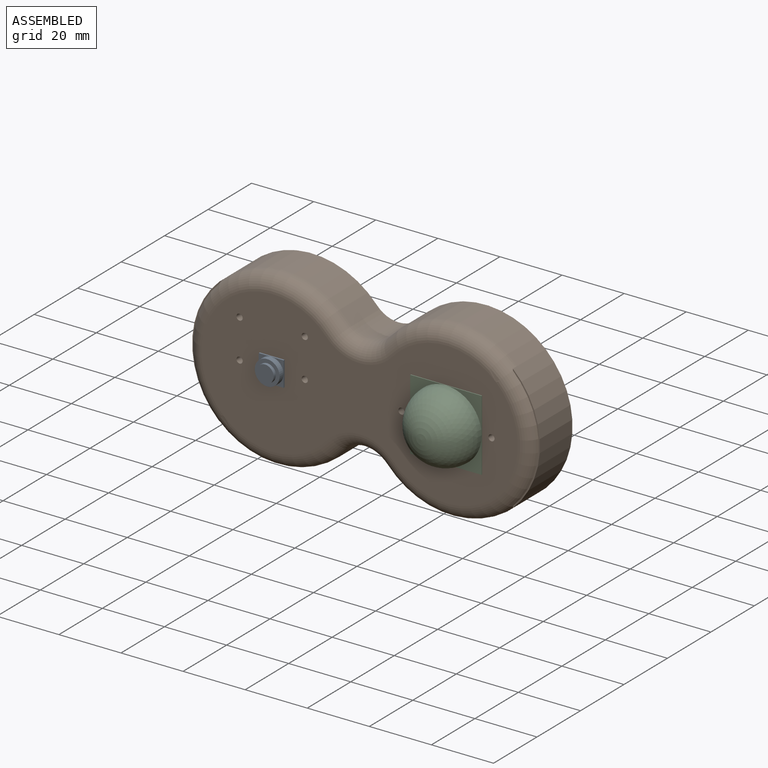
[diagram: assembled view]
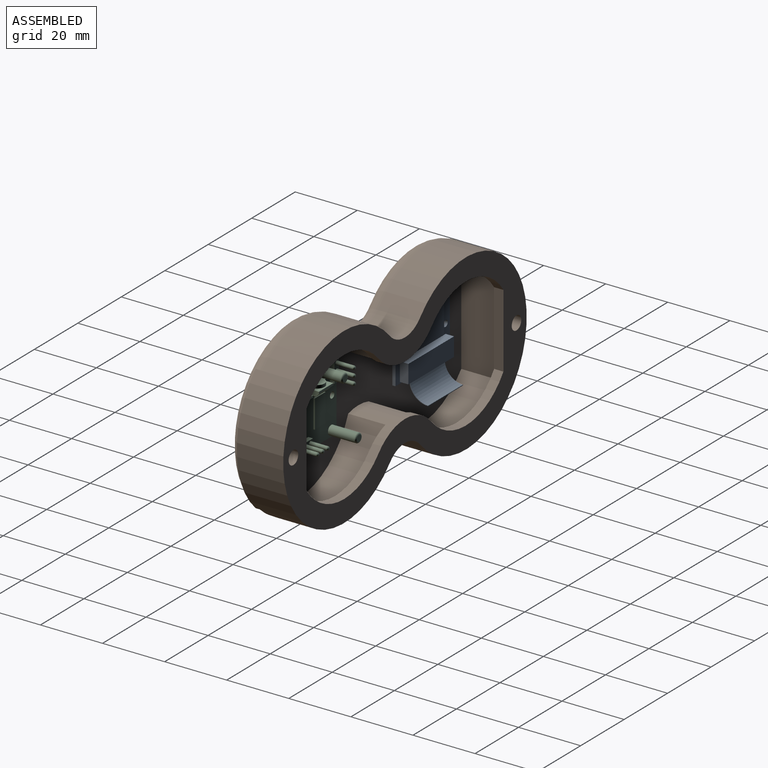
[diagram: assembled view, second angle]
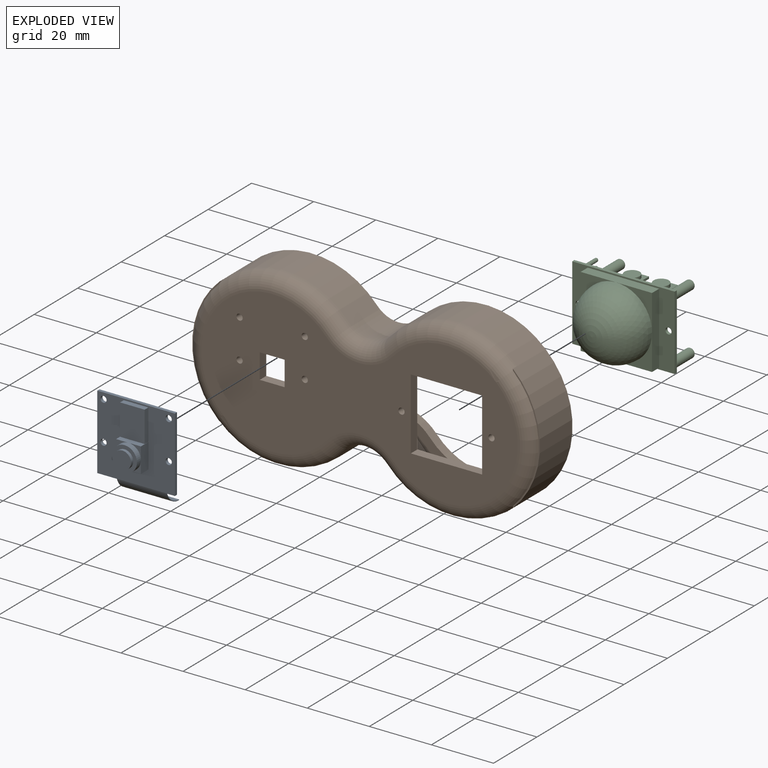
[diagram: exploded view]
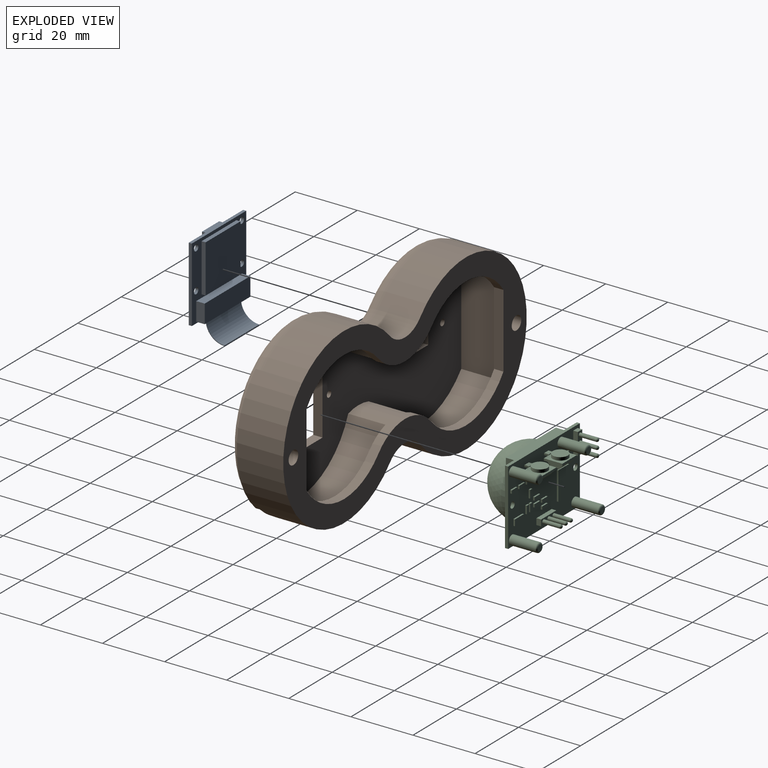
[diagram: exploded view, second angle]
ASSEMBLY  parts=3 mates=2
PART A: 41 faces, bbox 25x29.6x14.7 mm
  f0: plane 25x24mm, normal (0,0,1), area 444.3mm2, adj f5,f16,f17,f18,f19,f20,f21,f22
  f1: plane 4x4mm, normal (0,0,1), area 3.4mm2, adj f20,f21,f34
  f2: plane 4x4mm, normal (0,0,1), area 3.4mm2, adj f21,f22,f34
  f3: plane 4x4mm, normal (0,0,1), area 3.4mm2, adj f5,f22,f34
  f4: plane 25x24mm, normal (0,0,-1), area 213.4mm2, adj f11,f13,f14,f15,f16,f17,f18,f19
  f5: plane 8x3.5mm, normal (0,1,0), area 14.6mm2, adj f0,f3,f20,f22,f23,f24,f25,f26
  f6: cylinder r=5.9mm len=16mm, axis (-1,0,0), area 148.3mm2, adj f8,f9,f10,f15
  f7: cylinder r=6.1mm len=16mm, axis (-1,0,0), area 153.3mm2, adj f8,f9,f10,f15
  f8: plane 16x0.2mm, normal (0,0,-1), area 3.2mm2, adj f6,f7,f9,f10
  f9: plane 6.1x6.1mm, normal (1,0,0), area 1.9mm2, adj f6,f7,f8,f15
  f10: plane 6.1x6.1mm, normal (-1,0,0), area 1.9mm2, adj f6,f7,f8,f15
  f11: plane 6x2.75mm, normal (1,0,0), area 16.5mm2, adj f4,f12,f14,f15
  f12: plane 21x6mm, normal (0,0,-1), area 126mm2, adj f11,f13,f14,f15
  f13: plane 6x2.75mm, normal (-1,0,0), area 16.5mm2, adj f4,f12,f14,f15
  f14: plane 21x2.75mm, normal (0,1,0), area 57.8mm2, adj f4,f11,f12,f13
  f15: plane 21x2.75mm, normal (0,-1,0), area 54.6mm2, adj f4,f6,f7,f9,f10,f11,f12,f13
  f16: plane 24x1mm, normal (-1,0,0), area 24mm2, adj f0,f4,f17,f19
  f17: plane 25x1mm, normal (0,-1,0), area 25mm2, adj f0,f4,f16,f18
  f18: plane 24x1mm, normal (1,0,0), area 24mm2, adj f0,f4,f17,f19
  f19: plane 25x1mm, normal (0,1,0), area 25mm2, adj f0,f4,f16,f18
  f20: plane 8x3.5mm, normal (-1,0,0), area 28mm2, adj f0,f1,f5,f21,f23
  f21: plane 8x3.5mm, normal (0,-1,0), area 28mm2, adj f0,f1,f2,f20,f22
  f22: plane 8x3.5mm, normal (1,0,0), area 28mm2, adj f0,f2,f3,f5,f21
  f23: plane 4x4mm, normal (0,0,1), area 3.4mm2, adj f5,f20,f34
  f24: plane 10x7.91mm, normal (0,0,1), area 79.1mm2, adj f5,f25,f26,f27
  f25: plane 10x1.7mm, normal (1,0,0), area 17mm2, adj f0,f5,f24,f27
  f26: plane 10x1.7mm, normal (-1,0,0), area 17mm2, adj f0,f5,f24,f27
  f27: plane 7.91x1.7mm, normal (0,1,0), area 13.4mm2, adj f0,f24,f25,f26
  f28: plane 16x1.3mm, normal (0,-1,0), area 20.8mm2, adj f4,f29,f31,f32
  f29: plane 15.5x1.3mm, normal (-1,0,0), area 20.1mm2, adj f4,f28,f30,f32
  f30: plane 16x1.3mm, normal (0,1,0), area 20.8mm2, adj f4,f29,f31,f32
  f31: plane 15.5x1.3mm, normal (1,0,0), area 20.1mm2, adj f4,f28,f30,f32
  f32: plane 16x15.5mm, normal (0,0,-1), area 248mm2, adj f28,f29,f30,f31
  f33: plane 8x8mm, normal (0,0,1), area 25.6mm2, adj f34,f35
  f34: cylinder r=4mm len=8mm, axis (0,0,1), area 45.2mm2, adj f1,f2,f3,f23,f33
  f35: cylinder r=2.8mm len=5.6mm, axis (0,0,-1), area 17.6mm2, adj f33,f36
  f36: plane 5.6x5.6mm, normal (0,0,1), area 24.6mm2, adj f35
  f37: cylinder r=1mm len=2mm, axis (0,0,1), area 6.3mm2, adj f0,f4
  f38: cylinder r=1mm len=2mm, axis (0,0,1), area 6.3mm2, adj f0,f4
  f39: cylinder r=1mm len=2mm, axis (0,0,1), area 6.3mm2, adj f0,f4
  f40: cylinder r=1mm len=2mm, axis (0,0,1), area 6.3mm2, adj f0,f4
PART B: 55 faces, bbox 116.6x18x60.6 mm
  f0: plane 94.61x50mm, normal (0,1,0), area 3187.9mm2, adj f1,f2,f3,f4,f11,f12,f13,f14
  f1: cylinder r=25mm len=42.61mm, axis (0,1,0), area 624.9mm2, adj f0,f26,f34,f46
  f2: cylinder r=25mm len=42.61mm, axis (0,1,0), area 624.9mm2, adj f0,f25,f33,f42
  f3: cylinder r=25mm len=42.61mm, axis (0,1,0), area 624.9mm2, adj f0,f26,f33,f46
  f4: cylinder r=25mm len=42.61mm, axis (0,1,0), area 624.9mm2, adj f0,f25,f34,f42
  f5: plane 112x56mm, normal (0,1,0), area 2053.2mm2, adj f7,f8,f9,f10,f27,f28,f29,f30
  f6: plane 102x46mm, normal (0,-1,0), area 2981.4mm2, adj f11,f12,f13,f14,f15,f16,f17,f18
  f7: cylinder r=28mm len=56mm, axis (0,1,0), area 1852mm2, adj f5,f8,f10,f35,f43,f44,f45
  f8: cylinder r=9.32mm len=13.98mm, axis (0,1,0), area 205.6mm2, adj f5,f7,f9,f36
  f9: cylinder r=28mm len=56mm, axis (0,1,0), area 1852mm2, adj f5,f8,f10,f38,f39,f40,f41
  f10: cylinder r=9.32mm len=13.98mm, axis (0,1,0), area 205.6mm2, adj f5,f7,f9,f37
  f11: plane 8x3mm, normal (1,0,0), area 24mm2, adj f0,f6,f12,f14
  f12: plane 8x3mm, normal (0,0,1), area 24mm2, adj f0,f6,f11,f13
  f13: plane 8x3mm, normal (-1,0,0), area 24mm2, adj f0,f6,f12,f14
  f14: plane 8x3mm, normal (0,0,-1), area 24mm2, adj f0,f6,f11,f13
  f15: plane 23x3mm, normal (1,0,0), area 69mm2, adj f0,f6,f16,f18
  f16: plane 23x3mm, normal (0,0,1), area 69mm2, adj f0,f6,f15,f17
  f17: plane 23x3mm, normal (-1,0,0), area 69mm2, adj f0,f6,f16,f18
  f18: plane 23x3mm, normal (0,0,-1), area 69mm2, adj f0,f6,f15,f17
  f19: cylinder r=1mm len=3mm, axis (0,-1,0), area 18.8mm2, adj f0,f6
  f20: cylinder r=1mm len=3mm, axis (0,-1,0), area 18.8mm2, adj f0,f6
  f21: cylinder r=1mm len=3mm, axis (0,-1,0), area 18.8mm2, adj f0,f6
  f22: cylinder r=1mm len=3mm, axis (0,-1,0), area 18.8mm2, adj f0,f6
  f23: cylinder r=1mm len=3mm, axis (0,-1,0), area 18.8mm2, adj f0,f6
  f24: cylinder r=1mm len=3mm, axis (0,-1,0), area 18.8mm2, adj f0,f6
  f25: plane 50x42.61mm, normal (0,-1,0), area 427.8mm2, adj f2,f4,f27,f28,f29,f33,f34,f42
  f26: plane 50x42.61mm, normal (0,-1,0), area 427.8mm2, adj f1,f3,f30,f31,f32,f33,f34,f46
  f27: cylinder r=21mm len=33.06mm, axis (0,1,0), area 114.5mm2, adj f5,f25,f28,f33
  f28: plane 23.79x3mm, normal (1,0,0), area 71.4mm2, adj f5,f25,f27,f29
  f29: cylinder r=21mm len=33.06mm, axis (0,1,0), area 114.5mm2, adj f5,f25,f28,f34
  f30: cylinder r=21mm len=33.06mm, axis (0,1,0), area 114.5mm2, adj f5,f26,f31,f34
  f31: plane 23.79x3mm, normal (-1,0,0), area 71.4mm2, adj f5,f26,f30,f32
  f32: cylinder r=21mm len=33.06mm, axis (0,1,0), area 114.5mm2, adj f5,f26,f31,f33
  f33: cylinder r=16.32mm len=24.49mm, axis (0,1,0), area 197.3mm2, adj f0,f2,f3,f5,f25,f26,f27,f32
  f34: cylinder r=16.32mm len=24.49mm, axis (0,1,0), area 197.3mm2, adj f0,f1,f4,f5,f25,f26,f29,f30
  f35: torus R=23mm, axis (0,-1,0), area 902.7mm2, adj f6,f7,f36,f37,f43,f44,f45
  f36: torus R=14.32mm, axis (0,-1,0), area 148.4mm2, adj f6,f8,f35,f38
  f37: torus R=14.32mm, axis (0,-1,0), area 148.4mm2, adj f6,f10,f35,f38
  f38: torus R=23mm, axis (0,-1,0), area 902.7mm2, adj f6,f9,f36,f37,f39,f40,f41
  f39: plane 2.01x0.59mm, normal (1,0,0), area 0.4mm2, adj f9,f38,f41
  f40: plane 2x0.59mm, normal (1,0,0), area 0.4mm2, adj f9,f38,f41
  f41: plane 40.56x8.69mm, normal (0,-1,0), area 18.6mm2, adj f9,f38,f39,f40
  f42: plane 31.76x12mm, normal (1,0,0), area 381.2mm2, adj f0,f2,f4,f25
  f43: plane 2.01x0.59mm, normal (-1,0,0), area 0.4mm2, adj f7,f35,f45
  f44: plane 2x0.59mm, normal (-1,0,0), area 0.4mm2, adj f7,f35,f45
  f45: plane 40.56x8.69mm, normal (0,-1,0), area 18.6mm2, adj f7,f35,f43,f44
  f46: plane 31.76x12mm, normal (-1,0,0), area 381.2mm2, adj f0,f1,f3,f26
  f47: cylinder r=2.2mm len=9.4mm, axis (0,1,0), area 129.9mm2, adj f5,f48
  f48: cone r=0mm half-angle=59deg, axis (0,1,0), area 3.1mm2, adj f47,f50
  f49: cone r=0mm half-angle=59deg, axis (0,1,0), area 14.7mm2, adj f50
  f50: cylinder r=2mm len=4.88mm, axis (0,1,0), area 61.3mm2, adj f48,f49
  f51: cylinder r=2.2mm len=9.4mm, axis (0,1,0), area 129.9mm2, adj f5,f52
  f52: cone r=0mm half-angle=59deg, axis (0,1,0), area 3.1mm2, adj f51,f54
  f53: cone r=0mm half-angle=59deg, axis (0,1,0), area 14.7mm2, adj f54
  f54: cylinder r=2mm len=4.88mm, axis (0,1,0), area 61.3mm2, adj f52,f53
PART C: 187 faces, bbox 33x24x24.8 mm
  f0: plane 33x24mm, normal (0,0,-1), area 634.4mm2, adj f13,f14,f15,f16,f22,f23,f24,f26
  f1: plane 6.63x6mm, normal (0,1,0), area 20.8mm2, adj f5,f65,f66,f67,f68,f95
  f2: plane 6.63x6mm, normal (0,1,0), area 20.8mm2, adj f48,f49,f50,f51,f52,f93
  f3: plane 6.63x6mm, normal (0,-1,0), area 12.3mm2, adj f49,f50,f51,f52,f84,f85,f86,f87
  f4: plane 6.63x6mm, normal (0,-1,0), area 12.1mm2, adj f65,f66,f67,f68,f79,f80,f81,f82
  f5: plane 2x0.23mm, normal (0,0,-1), area 0.5mm2, adj f1,f40,f41,f42
  f6: plane 7x2.01mm, normal (0,0,-1), area 10.7mm2, adj f36,f37,f38,f39,f59,f61,f63
  f7: plane 7x2mm, normal (0,0,-1), area 10.6mm2, adj f32,f33,f34,f35,f53,f55,f57
  f8: plane 11.5x11.5mm, normal (0,0,1), area 28.4mm2, adj f17,f18,f21
  f9: plane 11.5x11.5mm, normal (0,0,1), area 28.4mm2, adj f18,f19,f21
  f10: plane 11.5x11.5mm, normal (0,0,1), area 28.4mm2, adj f19,f20,f21
  f11: plane 11.5x11.5mm, normal (0,0,1), area 28.4mm2, adj f17,f20,f21
  f12: plane 33x24mm, normal (0,0,1), area 256.7mm2, adj f13,f14,f15,f16,f17,f18,f19,f20
  f13: plane 24x1mm, normal (1,0,0), area 24mm2, adj f0,f12,f14,f16
  f14: plane 33x1mm, normal (0,1,0), area 33mm2, adj f0,f12,f13,f15
  f15: plane 24x1mm, normal (-1,0,0), area 24mm2, adj f0,f12,f14,f16
  f16: plane 33x1mm, normal (0,-1,0), area 33mm2, adj f0,f12,f13,f15
  f17: plane 23x3.25mm, normal (1,0,0), area 74.8mm2, adj f8,f11,f12,f18,f20
  f18: plane 23x3.25mm, normal (0,1,0), area 74.8mm2, adj f8,f9,f12,f17,f19
  f19: plane 23x3.25mm, normal (-1,0,0), area 74.8mm2, adj f9,f10,f12,f18,f20
  f20: plane 23x3.25mm, normal (0,-1,0), area 74.8mm2, adj f10,f11,f12,f17,f19
  f21: sphere r=11.5mm, area 831mm2, adj f8,f9,f10,f11
  f22: cylinder r=1mm len=2mm, axis (0,0,1), area 6.3mm2, adj f0,f12
  f23: cylinder r=1mm len=2mm, axis (0,0,1), area 6.3mm2, adj f0,f12
  f24: cylinder r=1.5mm len=8.5mm, axis (0,0,1), area 80.1mm2, adj f0,f78
  f25: plane 2x2mm, normal (0,0,-1), area 3.1mm2, adj f78
  f26: cylinder r=1.5mm len=8.5mm, axis (0,0,1), area 80.1mm2, adj f0,f77
  f27: plane 2x2mm, normal (0,0,-1), area 3.1mm2, adj f77
  f28: cylinder r=1.5mm len=8.5mm, axis (0,0,1), area 80.1mm2, adj f0,f75
  f29: plane 2x2mm, normal (0,0,-1), area 3.1mm2, adj f75
  f30: cylinder r=1.5mm len=8.5mm, axis (0,0,1), area 80.1mm2, adj f0,f76
  f31: plane 2x2mm, normal (0,0,-1), area 3.1mm2, adj f76
  f32: plane 2x1.5mm, normal (-1,0,0), area 3mm2, adj f0,f7,f33,f35
  f33: plane 7x1.5mm, normal (0,1,0), area 10.5mm2, adj f0,f7,f32,f34
  f34: plane 2x1.5mm, normal (1,0,0), area 3mm2, adj f0,f7,f33,f35
  f35: plane 7x1.5mm, normal (0,-1,0), area 10.5mm2, adj f0,f7,f32,f34
  f36: plane 7x1.5mm, normal (-1,0,0), area 10.5mm2, adj f0,f6,f37,f39
  f37: plane 2.01x1.5mm, normal (0,1,0), area 3mm2, adj f0,f6,f36,f38
  f38: plane 7x1.5mm, normal (1,0,0), area 10.5mm2, adj f0,f6,f37,f39
  f39: plane 2.01x1.5mm, normal (0,-1,0), area 3mm2, adj f0,f6,f36,f38
  f40: plane 1.5x0.59mm, normal (-1,0,0), area 0.9mm2, adj f0,f5,f41,f43,f68
  f41: plane 2x1.5mm, normal (0,1,0), area 3mm2, adj f0,f5,f40,f42
  f42: plane 1.5x0.59mm, normal (1,0,0), area 0.9mm2, adj f0,f5,f41,f43,f68
  f43: plane 2x1.5mm, normal (0,-1,0), area 3mm2, adj f0,f40,f42,f68
  f44: plane 1.5x0.59mm, normal (-1,0,0), area 0.9mm2, adj f0,f45,f47,f48,f49
  f45: plane 2x1.5mm, normal (0,1,0), area 3mm2, adj f0,f44,f46,f48
  f46: plane 1.5x0.59mm, normal (1,0,0), area 0.9mm2, adj f0,f45,f47,f48,f49
  f47: plane 2x1.5mm, normal (0,-1,0), area 3mm2, adj f0,f44,f46,f49
  f48: plane 2x0.23mm, normal (0,0,-1), area 0.5mm2, adj f2,f44,f45,f46
  f49: plane 6.63x0.7mm, normal (0,0,1), area 4mm2, adj f2,f3,f44,f46,f47,f50,f51
  f50: plane 6x0.7mm, normal (-1,0,0), area 4.2mm2, adj f2,f3,f49,f52
  f51: plane 6x0.7mm, normal (1,0,0), area 4.2mm2, adj f2,f3,f49,f52
  f52: plane 6.63x0.7mm, normal (0,0,-1), area 4.7mm2, adj f2,f3,f50,f51
  f53: cylinder r=0.6mm len=5.5mm, axis (0,0,1), area 20.7mm2, adj f7,f73
  f54: plane 0.2x0.2mm, normal (0,0,-1), area 0mm2, adj f73
  f55: cylinder r=0.6mm len=5.5mm, axis (0,0,1), area 20.7mm2, adj f7,f74
  f56: plane 0.2x0.2mm, normal (0,0,-1), area 0mm2, adj f74
  f57: cylinder r=0.6mm len=5.5mm, axis (0,0,1), area 20.7mm2, adj f7,f72
  f58: plane 0.2x0.2mm, normal (0,0,-1), area 0mm2, adj f72
  f59: cylinder r=0.6mm len=5.5mm, axis (0,0,1), area 20.7mm2, adj f6,f70
  f60: plane 0.2x0.2mm, normal (0,0,-1), area 0mm2, adj f70
  f61: cylinder r=0.6mm len=5.5mm, axis (0,0,1), area 20.7mm2, adj f6,f69
  f62: plane 0.2x0.2mm, normal (0,0,-1), area 0mm2, adj f69
  f63: cylinder r=0.6mm len=5.5mm, axis (0,0,1), area 20.7mm2, adj f6,f71
  f64: plane 0.2x0.2mm, normal (0,0,-1), area 0mm2, adj f71
  f65: plane 6x0.7mm, normal (-1,0,0), area 4.2mm2, adj f1,f4,f67,f68
  f66: plane 6x0.7mm, normal (1,0,0), area 4.2mm2, adj f1,f4,f67,f68
  f67: plane 6.63x0.7mm, normal (0,0,-1), area 4.7mm2, adj f1,f4,f65,f66
  f68: plane 6.63x0.7mm, normal (0,0,1), area 4mm2, adj f1,f4,f40,f42,f43,f65,f66
  f69: torus R=0.1mm, axis (0,0,-1), area 2.1mm2, adj f61,f62
  f70: torus R=0.1mm, axis (0,0,-1), area 2.1mm2, adj f59,f60
  f71: torus R=0.1mm, axis (0,0,1), area 2.1mm2, adj f63,f64
  f72: torus R=0.1mm, axis (0,0,1), area 2.1mm2, adj f57,f58
  f73: torus R=0.1mm, axis (0,0,-1), area 2.1mm2, adj f53,f54
  f74: torus R=0.1mm, axis (0,0,-1), area 2.1mm2, adj f55,f56
  f75: torus R=1mm, axis (0,0,-1), area 6.5mm2, adj f28,f29
  f76: torus R=1mm, axis (0,0,-1), area 6.5mm2, adj f30,f31
  f77: torus R=1mm, axis (0,0,-1), area 6.5mm2, adj f26,f27
  f78: torus R=1mm, axis (0,0,-1), area 6.5mm2, adj f24,f25
  f79: plane 4.72x1.5mm, normal (1,0,0), area 6.1mm2, adj f4,f80,f82,f83,f91,f92
  f80: plane 5.86x0.5mm, normal (0,0,1), area 2.9mm2, adj f4,f79,f81,f91
  f81: plane 4.72x1.5mm, normal (-1,0,0), area 6.1mm2, adj f4,f80,f82,f83,f91,f92
  f82: plane 5.86x0.5mm, normal (0,0,-1), area 2.9mm2, adj f4,f79,f81,f92
  f83: plane 5.86x2.72mm, normal (0,-1,0), area 15.9mm2, adj f79,f81,f91,f92
  f84: plane 4.72x1.5mm, normal (1,0,0), area 6.1mm2, adj f3,f85,f87,f88,f89,f90
  f85: plane 5.82x0.5mm, normal (0,0,1), area 2.9mm2, adj f3,f84,f86,f89
  f86: plane 4.72x1.5mm, normal (-1,0,0), area 6.1mm2, adj f3,f85,f87,f88,f89,f90
  f87: plane 5.82x0.5mm, normal (0,0,-1), area 2.9mm2, adj f3,f84,f86,f90
  f88: plane 5.82x2.72mm, normal (0,-1,0), area 15.8mm2, adj f84,f86,f89,f90
  f89: plane 5.82x1mm, normal (0,-0.71,0.71), area 8.2mm2, adj f84,f85,f86,f88
  f90: plane 5.82x1mm, normal (0,-0.71,-0.71), area 8.2mm2, adj f84,f86,f87,f88
  f91: plane 5.86x1mm, normal (0,-0.71,0.71), area 8.3mm2, adj f79,f80,f81,f83
  f92: plane 5.86x1mm, normal (0,-0.71,-0.71), area 8.3mm2, adj f79,f81,f82,f83
  f93: cylinder r=2.46mm len=4.91mm, axis (0,-1,0), area 15.4mm2, adj f2,f94
  f94: plane 4.91x4.91mm, normal (0,1,0), area 18.9mm2, adj f93
  f95: cylinder r=2.46mm len=4.91mm, axis (0,-1,0), area 15.4mm2, adj f1,f96
  f96: plane 4.91x4.91mm, normal (0,1,0), area 18.9mm2, adj f95
  f97: plane 1x0.5mm, normal (1,0,0), area 0.5mm2, adj f0,f98,f100,f101
  f98: plane 2.5x0.5mm, normal (0,-1,0), area 1.2mm2, adj f0,f97,f99,f101
  f99: plane 1x0.5mm, normal (-1,0,0), area 0.5mm2, adj f0,f98,f100,f101
  f100: plane 2.5x0.5mm, normal (0,1,0), area 1.2mm2, adj f0,f97,f99,f101
  f101: plane 2.5x1mm, normal (0,0,-1), area 2.5mm2, adj f97,f98,f99,f100
  f102: plane 1x0.5mm, normal (1,0,0), area 0.5mm2, adj f0,f103,f105,f106
  f103: plane 2.5x0.5mm, normal (0,-1,0), area 1.2mm2, adj f0,f102,f104,f106
  f104: plane 1x0.5mm, normal (-1,0,0), area 0.5mm2, adj f0,f103,f105,f106
  f105: plane 2.5x0.5mm, normal (0,1,0), area 1.2mm2, adj f0,f102,f104,f106
  f106: plane 2.5x1mm, normal (0,0,-1), area 2.5mm2, adj f102,f103,f104,f105
  f107: plane 1x0.5mm, normal (1,0,0), area 0.5mm2, adj f0,f108,f110,f111
  f108: plane 2.5x0.5mm, normal (0,-1,0), area 1.2mm2, adj f0,f107,f109,f111
  f109: plane 1x0.5mm, normal (-1,0,0), area 0.5mm2, adj f0,f108,f110,f111
  f110: plane 2.5x0.5mm, normal (0,1,0), area 1.2mm2, adj f0,f107,f109,f111
  f111: plane 2.5x1mm, normal (0,0,-1), area 2.5mm2, adj f107,f108,f109,f110
  f112: plane 1x0.5mm, normal (1,0,0), area 0.5mm2, adj f0,f113,f115,f116
  f113: plane 2.5x0.5mm, normal (0,-1,0), area 1.2mm2, adj f0,f112,f114,f116
  f114: plane 1x0.5mm, normal (-1,0,0), area 0.5mm2, adj f0,f113,f115,f116
  f115: plane 2.5x0.5mm, normal (0,1,0), area 1.2mm2, adj f0,f112,f114,f116
  f116: plane 2.5x1mm, normal (0,0,-1), area 2.5mm2, adj f112,f113,f114,f115
  f117: plane 1x0.5mm, normal (1,0,0), area 0.5mm2, adj f0,f118,f120,f121
  f118: plane 2.5x0.5mm, normal (0,-1,0), area 1.2mm2, adj f0,f117,f119,f121
  f119: plane 1x0.5mm, normal (-1,0,0), area 0.5mm2, adj f0,f118,f120,f121
  f120: plane 2.5x0.5mm, normal (0,1,0), area 1.2mm2, adj f0,f117,f119,f121
  f121: plane 2.5x1mm, normal (0,0,-1), area 2.5mm2, adj f117,f118,f119,f120
  f122: plane 1x0.5mm, normal (1,0,0), area 0.5mm2, adj f0,f123,f125,f126
  f123: plane 2.5x0.5mm, normal (0,-1,0), area 1.3mm2, adj f0,f122,f124,f126
  f124: plane 1x0.5mm, normal (-1,0,0), area 0.5mm2, adj f0,f123,f125,f126
  f125: plane 2.5x0.5mm, normal (0,1,0), area 1.3mm2, adj f0,f122,f124,f126
  f126: plane 2.5x1mm, normal (0,0,-1), area 2.5mm2, adj f122,f123,f124,f125
  f127: plane 9.15x0.5mm, normal (1,0,0), area 4.6mm2, adj f0,f128,f130,f131
  f128: plane 4.86x0.5mm, normal (0,-1,0), area 2.4mm2, adj f0,f127,f129,f131
  f129: plane 9.15x0.5mm, normal (-1,0,0), area 4.6mm2, adj f0,f128,f130,f131
  f130: plane 4.86x0.5mm, normal (0,1,0), area 2.4mm2, adj f0,f127,f129,f131
  f131: plane 9.15x4.86mm, normal (0,0,-1), area 44.5mm2, adj f127,f128,f129,f130
  f132: plane 1x0.5mm, normal (1,0,0), area 0.5mm2, adj f0,f133,f135,f136
  f133: plane 2.5x0.5mm, normal (0,-1,0), area 1.2mm2, adj f0,f132,f134,f136
  f134: plane 1x0.5mm, normal (-1,0,0), area 0.5mm2, adj f0,f133,f135,f136
  f135: plane 2.5x0.5mm, normal (0,1,0), area 1.2mm2, adj f0,f132,f134,f136
  f136: plane 2.5x1mm, normal (0,0,-1), area 2.5mm2, adj f132,f133,f134,f135
  f137: plane 1x0.5mm, normal (1,0,0), area 0.5mm2, adj f0,f138,f140,f141
  f138: plane 2.5x0.5mm, normal (0,-1,0), area 1.3mm2, adj f0,f137,f139,f141
  f139: plane 1x0.5mm, normal (-1,0,0), area 0.5mm2, adj f0,f138,f140,f141
  f140: plane 2.5x0.5mm, normal (0,1,0), area 1.3mm2, adj f0,f137,f139,f141
  f141: plane 2.5x1mm, normal (0,0,-1), area 2.5mm2, adj f137,f138,f139,f140
  f142: plane 1x0.5mm, normal (1,0,0), area 0.5mm2, adj f0,f143,f145,f146
  f143: plane 2.5x0.5mm, normal (0,-1,0), area 1.3mm2, adj f0,f142,f144,f146
  f144: plane 1x0.5mm, normal (-1,0,0), area 0.5mm2, adj f0,f143,f145,f146
  f145: plane 2.5x0.5mm, normal (0,1,0), area 1.3mm2, adj f0,f142,f144,f146
  f146: plane 2.5x1mm, normal (0,0,-1), area 2.5mm2, adj f142,f143,f144,f145
  f147: plane 2.5x0.5mm, normal (-1,0,0), area 1.2mm2, adj f0,f148,f150,f151
  f148: plane 1x0.5mm, normal (0,1,0), area 0.5mm2, adj f0,f147,f149,f151
  f149: plane 2.5x0.5mm, normal (1,0,0), area 1.2mm2, adj f0,f148,f150,f151
  f150: plane 1x0.5mm, normal (0,-1,0), area 0.5mm2, adj f0,f147,f149,f151
  f151: plane 2.5x1mm, normal (0,0,-1), area 2.5mm2, adj f147,f148,f149,f150
  f152: plane 2.5x0.5mm, normal (-1,0,0), area 1.2mm2, adj f0,f153,f155,f156
  f153: plane 1x0.5mm, normal (0,1,0), area 0.5mm2, adj f0,f152,f154,f156
  f154: plane 2.5x0.5mm, normal (1,0,0), area 1.2mm2, adj f0,f153,f155,f156
  f155: plane 1x0.5mm, normal (0,-1,0), area 0.5mm2, adj f0,f152,f154,f156
  f156: plane 2.5x1mm, normal (0,0,-1), area 2.5mm2, adj f152,f153,f154,f155
  f157: plane 2x0.5mm, normal (1,0,0), area 1mm2, adj f0,f158,f160,f161
  f158: plane 4.08x0.5mm, normal (0,-1,0), area 2mm2, adj f0,f157,f159,f161
  f159: plane 2x0.5mm, normal (-1,0,0), area 1mm2, adj f0,f158,f160,f161
  f160: plane 4.08x0.5mm, normal (0,1,0), area 2mm2, adj f0,f157,f159,f161
  f161: plane 4.08x2mm, normal (0,0,-1), area 8.2mm2, adj f157,f158,f159,f160
  f162: plane 2.5x0.5mm, normal (-1,0,0), area 1.2mm2, adj f0,f163,f165,f166
  f163: plane 1x0.5mm, normal (0,1,0), area 0.5mm2, adj f0,f162,f164,f166
  f164: plane 2.5x0.5mm, normal (1,0,0), area 1.2mm2, adj f0,f163,f165,f166
  f165: plane 1x0.5mm, normal (0,-1,0), area 0.5mm2, adj f0,f162,f164,f166
  f166: plane 2.5x1mm, normal (0,0,-1), area 2.5mm2, adj f162,f163,f164,f165
  f167: plane 1x0.5mm, normal (1,0,0), area 0.5mm2, adj f0,f168,f170,f171
  f168: plane 2.5x0.5mm, normal (0,-1,0), area 1.2mm2, adj f0,f167,f169,f171
  f169: plane 1x0.5mm, normal (-1,0,0), area 0.5mm2, adj f0,f168,f170,f171
  f170: plane 2.5x0.5mm, normal (0,1,0), area 1.2mm2, adj f0,f167,f169,f171
  f171: plane 2.5x1mm, normal (0,0,-1), area 2.5mm2, adj f167,f168,f169,f170
  f172: plane 1x0.5mm, normal (1,0,0), area 0.5mm2, adj f0,f173,f175,f176
  f173: plane 2.5x0.5mm, normal (0,-1,0), area 1.2mm2, adj f0,f172,f174,f176
  f174: plane 1x0.5mm, normal (-1,0,0), area 0.5mm2, adj f0,f173,f175,f176
  f175: plane 2.5x0.5mm, normal (0,1,0), area 1.2mm2, adj f0,f172,f174,f176
  f176: plane 2.5x1mm, normal (0,0,-1), area 2.5mm2, adj f172,f173,f174,f175
  f177: plane 1x0.5mm, normal (1,0,0), area 0.5mm2, adj f0,f178,f180,f181
  f178: plane 2.5x0.5mm, normal (0,-1,0), area 1.3mm2, adj f0,f177,f179,f181
  f179: plane 1x0.5mm, normal (-1,0,0), area 0.5mm2, adj f0,f178,f180,f181
  f180: plane 2.5x0.5mm, normal (0,1,0), area 1.3mm2, adj f0,f177,f179,f181
  f181: plane 2.5x1mm, normal (0,0,-1), area 2.5mm2, adj f177,f178,f179,f180
  f182: plane 1x0.5mm, normal (1,0,0), area 0.5mm2, adj f0,f183,f185,f186
  f183: plane 2.5x0.5mm, normal (0,-1,0), area 1.3mm2, adj f0,f182,f184,f186
  f184: plane 1x0.5mm, normal (-1,0,0), area 0.5mm2, adj f0,f183,f185,f186
  f185: plane 2.5x0.5mm, normal (0,1,0), area 1.3mm2, adj f0,f182,f184,f186
  f186: plane 2.5x1mm, normal (0,0,-1), area 2.5mm2, adj f182,f183,f184,f185
PLACE A rot(axis=(1,0,0),90deg) t=(-50.8,-3.46,15.6)mm
PLACE B t=(-22.66,11.54,12.19)mm
PLACE C rot(axis=(1,0,0),90deg) t=(5.34,-2.46,12.19)mm
MATE planar C.f12 <-> B.f0  axis (0,-1,0) through (5.34,-3.46,12.19)mm
MATE planar A.f0 <-> B.f0  axis (0,-1,0) through (-50.8,-3.46,14.69)mm
